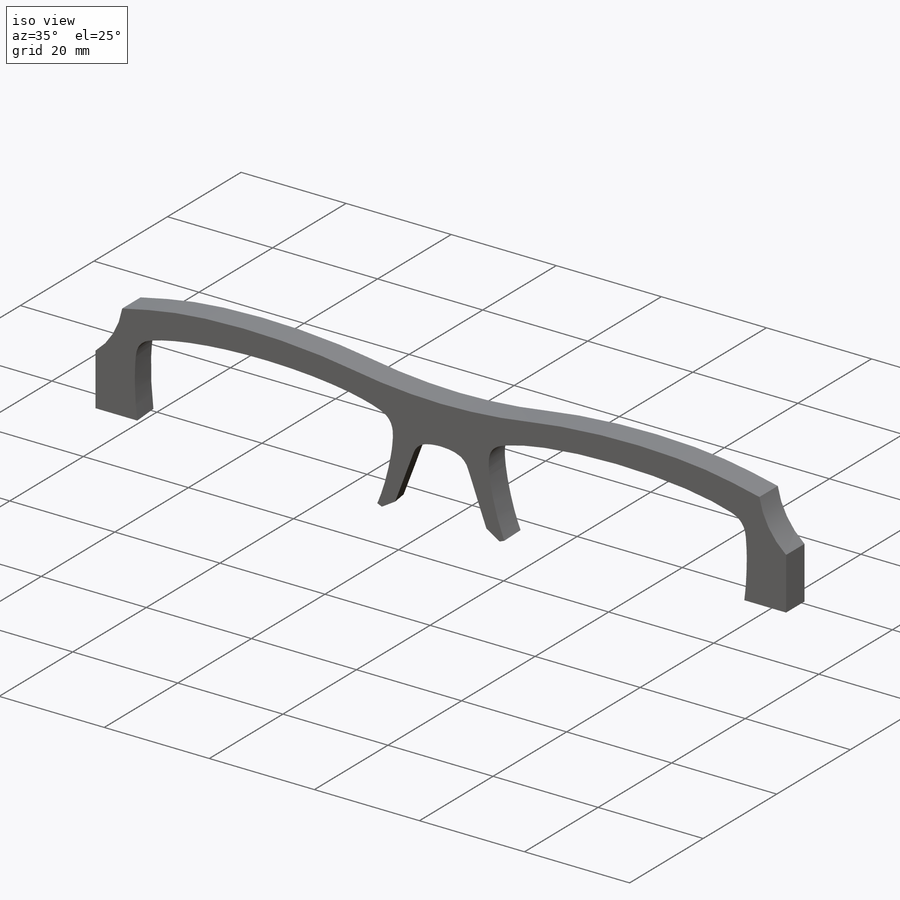
[diagram: iso view]
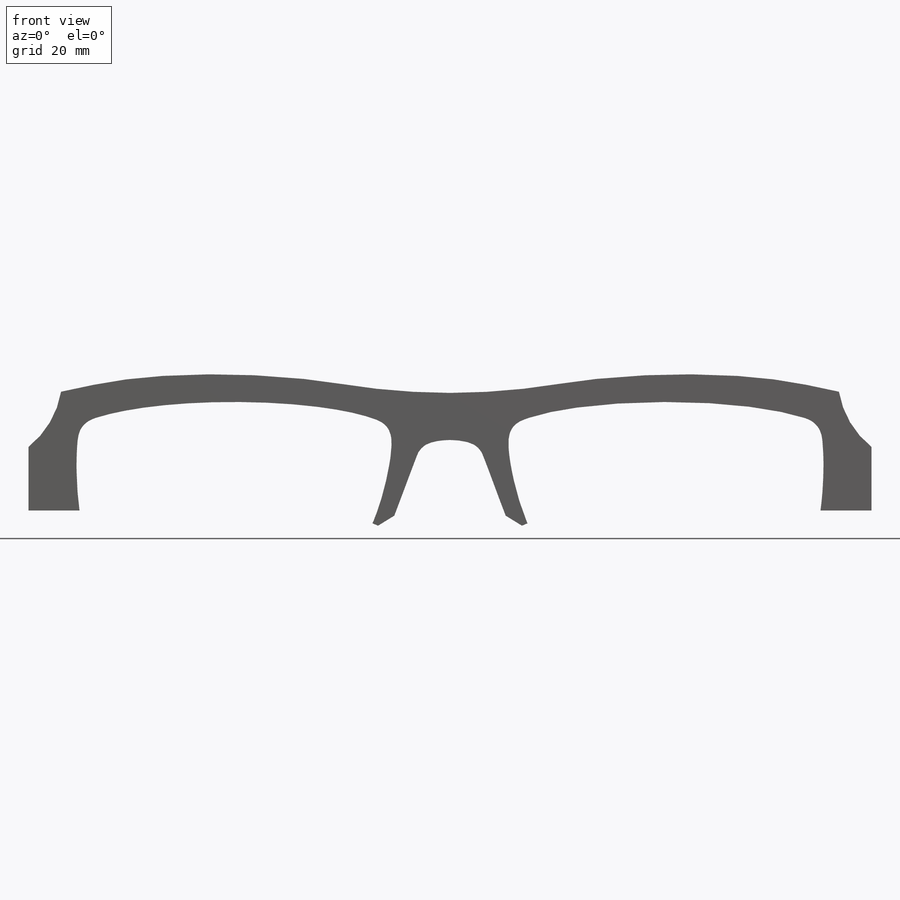
[diagram: front view]
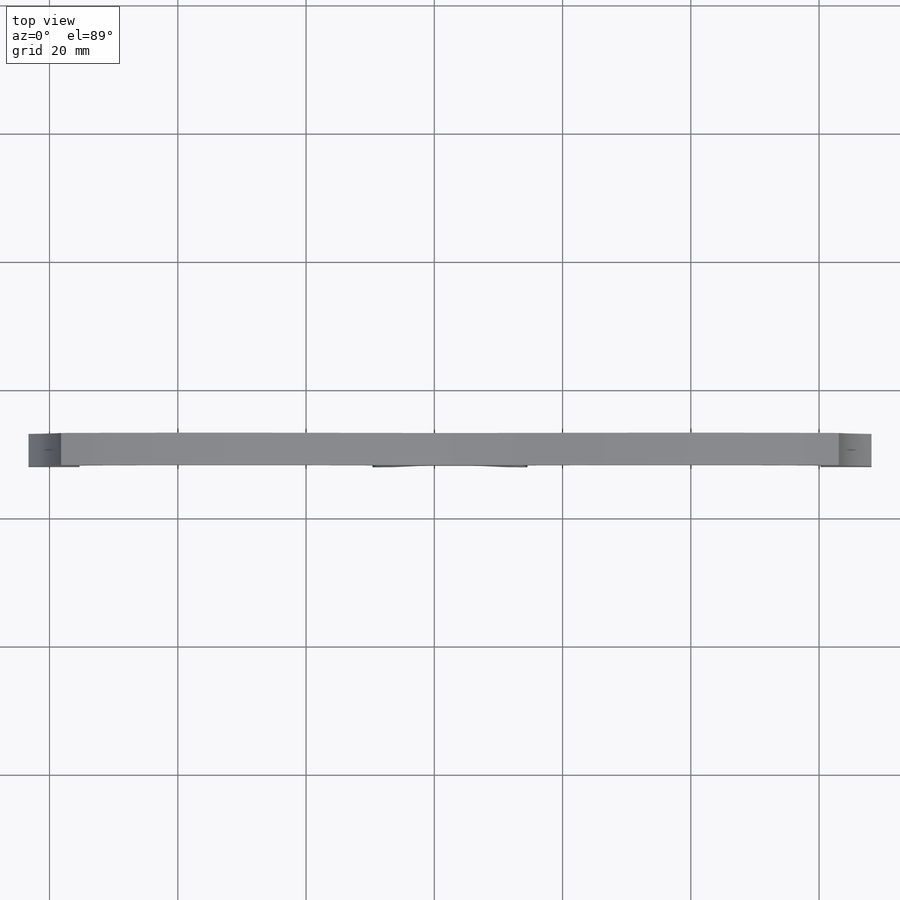
[diagram: top view]
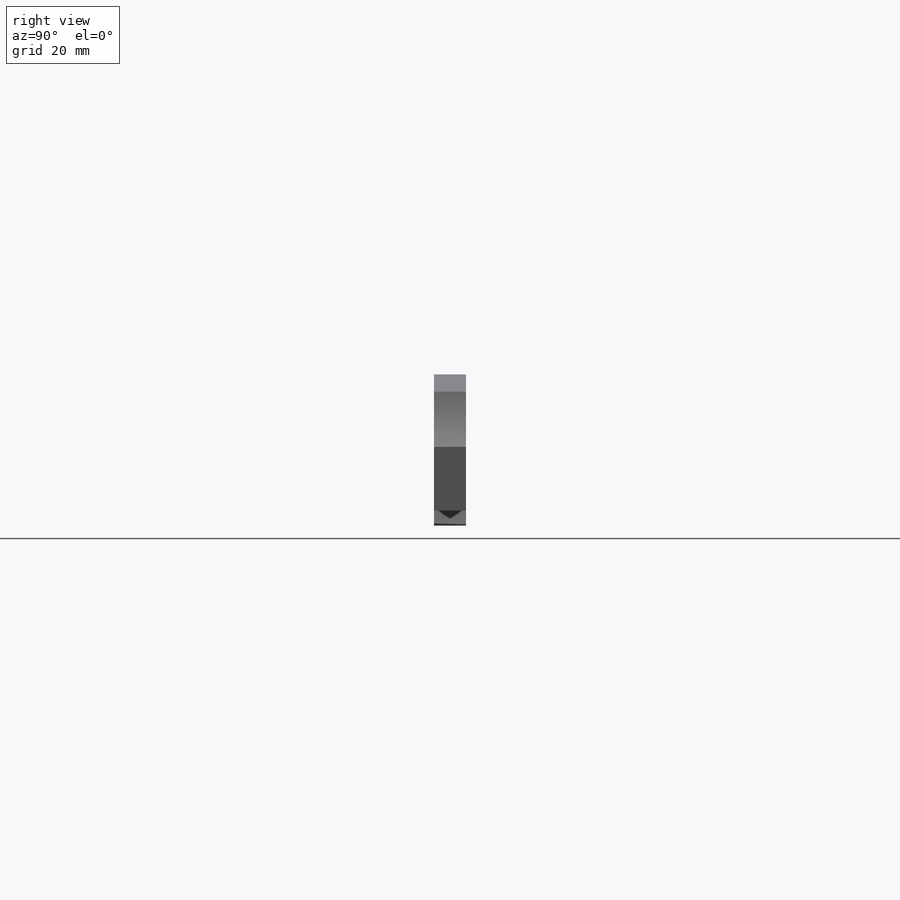
[diagram: right view]
SOLIDWORKS PART (.sldprt)
format: sldprt  version: not decoded by parser v0  size: 510,976 bytes
history: native  units: mm
features: sketch x5, plane x3, cut_extrude x3, extrude x2, mirror x2, material x1, delete_body x1 (+13 scaffold rows collapsed)
feature tree (30):
  scaffold x13  (default folders/planes/origin — collapsed)
  material  "Matériau <non spécifié>"
  plane  "Plan de face"
  plane  "Plan de dessus"
  plane  "Plan de droite"
  sketch  "Esquisse1"  dims[c1.D2=2.0mm c1.D1=~49.200276mm c2.D2=0.7mm]
  extrude  "Extrusion1"  Depth=7mm
  mirror  "Symétrie1"
  sketch  "Esquisse2"
  cut_extrude  "Extrusion3"  [1 undecoded]
  sketch  "Esquisse3"  dims[D1=0.0mm D2=0.5mm]
  extrude  "Extrusion4"  Depth=5mm
  delete_body  "Corps-Effacer/suppr1"
  sketch  "Esquisse4"
  cut_extrude  "Extrusion5"  Depth=5mm
  sketch  "Esquisse5"
  cut_extrude  "Extrusion6"  Depth=5mm
  mirror  "Symétrie2"
decode coverage: 6 of 13 modeling features carry decoded parameters
note: ~ marks probable driven/reference dimensions
note: 1 parameter value undecoded
note: suppression state not decoded; provenance and decode notes live in map.json
